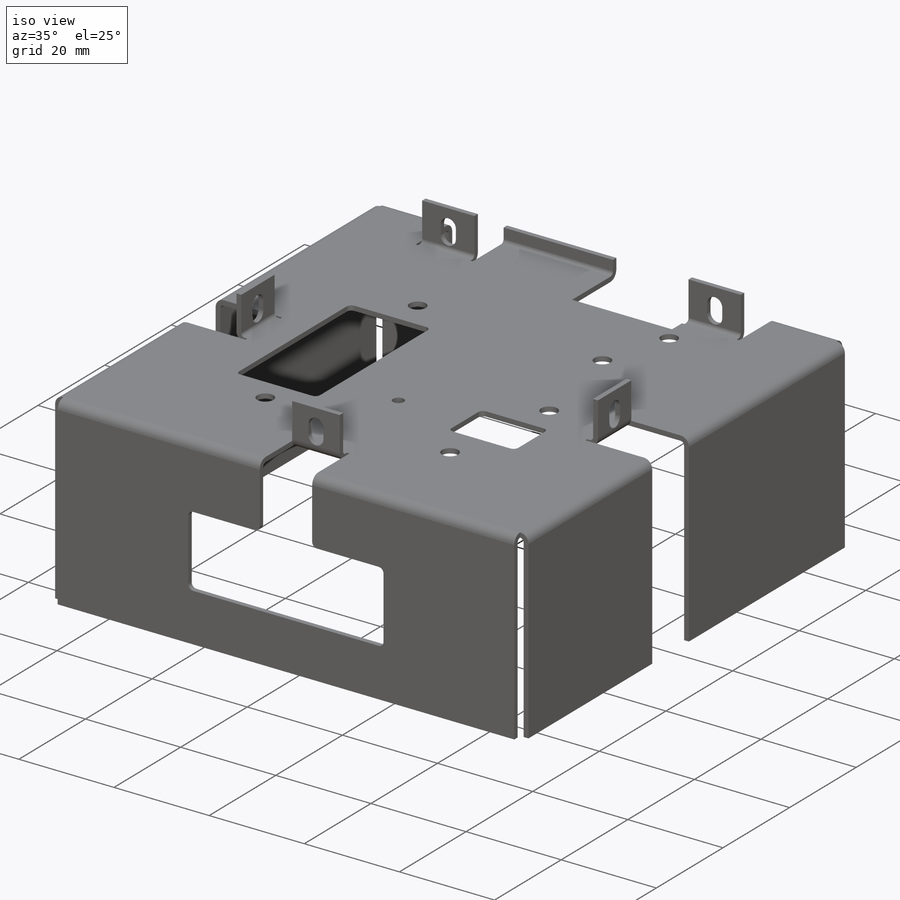
[diagram: iso view]
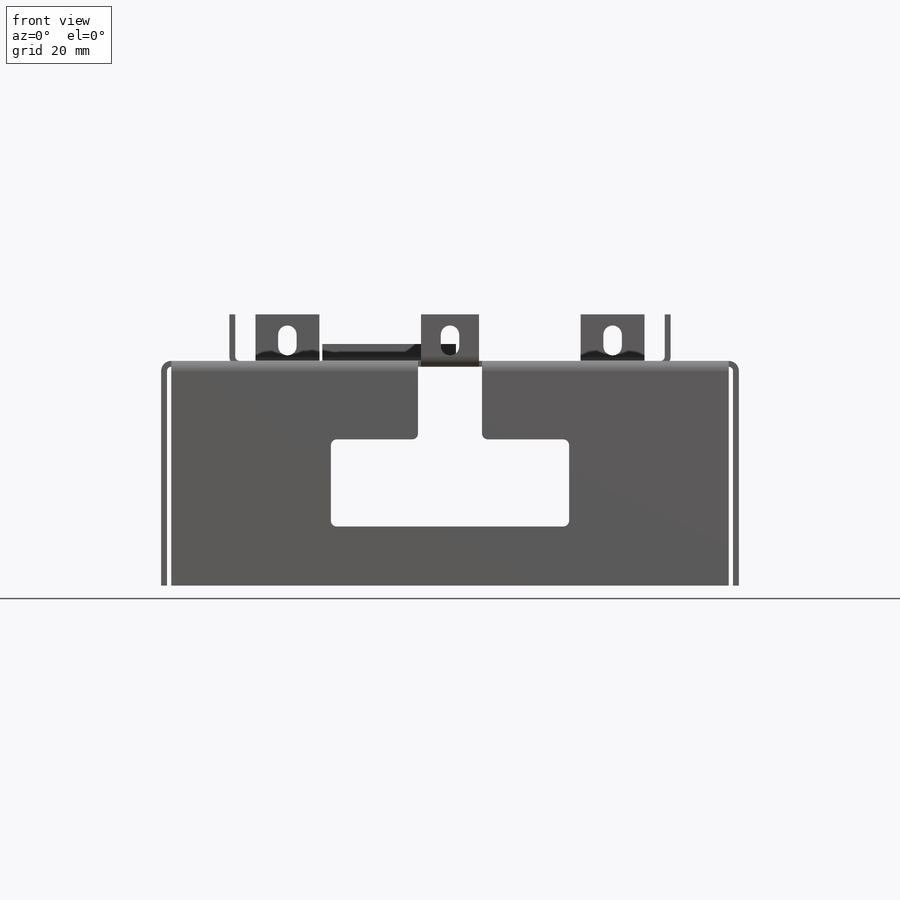
[diagram: front view]
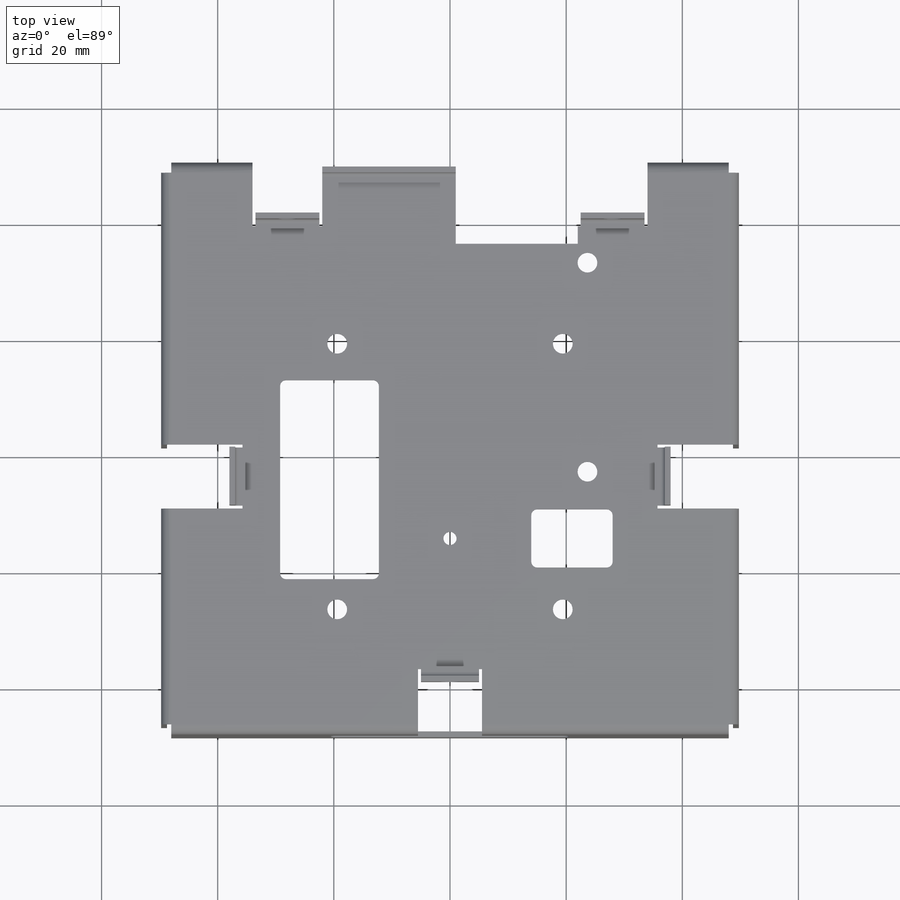
[diagram: top view]
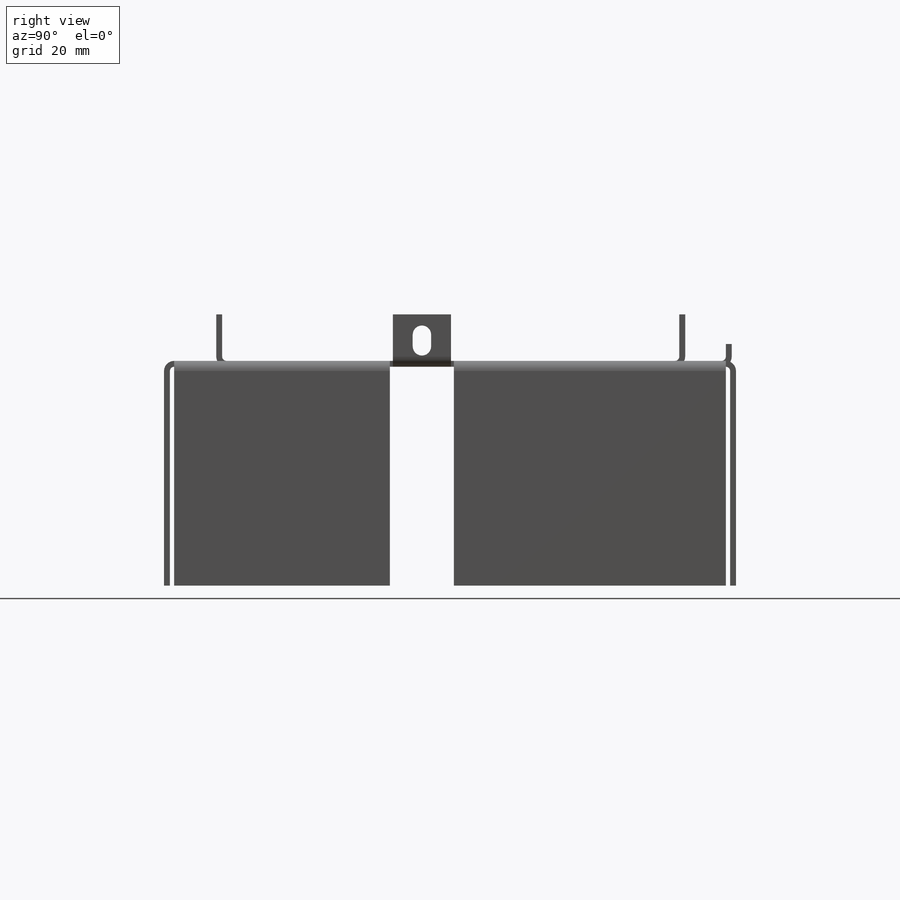
[diagram: right view]
SOLIDWORKS PART (.sldprt)
format: sldprt  version: not decoded by parser v0  size: 1,753,088 bytes
history: native  units: mm
features: sketch x72, sheet_metal_op x39, fillet x25, cut_extrude x9, mirror x5, material x1, plane x1, extrude x1 + 224 further entries (+13 scaffold rows collapsed; 25 parser-record rows omitted)
feature tree (415):
  scaffold x13  (default folders/planes/origin — collapsed)
  material  "6061 Alloy"
  sketch  "Sketch1"  dims[c1.D1=96.75mm c1.D2=96.0mm c2.D1=0.7366mm c2.D2=0.5 c2.D3=0.0mm c2.D6=500.0mm]
  sheet_metal_op  "Base-Flange1"
  sketch  "Sketch8"  dims[c1.D1=20.0mm c1.D2=11.0mm c1.D3=8.0mm c2.D1=14.5mm c3.D1=0.7366mm c3.D4=90.0deg c3.D5=1.0 c3.D8=0.508mm c3.D9=0.508mm c4.D1=0.7366mm c4.D2=500.0mm c4.D3=0.0mm c4.D6=7.0mm c4.D7=9.016mm]
  sketch  "Sketch47"  dims[D1=3.18mm D2=2.0mm D3=3.5mm]
  cut_extrude  "Cut-Extrude4"  [1 undecoded]
  plane  "Plane4"
  mirror  "Mirror4"
  sheet_metal_op  "MirrorBend5"  Edge-Flange8=0
  sketch  "Sketch38"  dims[D1=10.0mm D2=10.0mm D3=8.0mm]
  sheet_metal_op  "EdgeBend8"  Edge-Flange2=0
  sketch  "Sketch40"
  sheet_metal_op  "EdgeBend9"  Edge-Flange9=0
  sketch  "Sketch43"
  sheet_metal_op  "EdgeBend10"  Edge-Flange4=0
  sketch  "Sketch22"  dims[D1=10.0mm D2=8.0mm D3=30.94mm]
  sheet_metal_op  "EdgeBend4"
  sketch  "Sketch24"  dims[D1=3.18mm D2=2.0mm D3=3.5mm]
  cut_extrude  "Cut-Extrude1"  [1 undecoded]
  mirror  "Mirror5"
  sheet_metal_op  "MirrorBend6"  Edge-Flange5=0
  sketch  "Sketch29"
  sheet_metal_op  "EdgeBend5"  Edge-Flange6=0
  sketch  "Sketch32"
  sheet_metal_op  "EdgeBend6"
  mirror  "Mirror6"
  sheet_metal_op  "MirrorBend7"
  sheet_metal_op  "MirrorBend8"
  sketch  "Sketch44"  dims[D1=3.18mm D2=2.0mm D3=3.5mm]
  cut_extrude  "Cut-Extrude2"  Depth=0 Edge-Flange10=0
  sketch  "Sketch50"
  sheet_metal_op  "EdgeBend11"
  mirror  "Mirror7"
  sheet_metal_op  "MirrorBend9"
  sketch  "Sketch59"  dims[D1=49.0mm D2=15.0mm D3=12.25mm]
  cut_extrude  "Cut-Extrude9"  Depth=10mm Edge-Flange11=0
  sketch  "Sketch53"
  sheet_metal_op  "EdgeBend12"
  sketch  "Sketch54"  dims[D1=17.0mm D2=25.0mm D3=27.0mm D4=7.0mm]
  cut_extrude  "Cut-Extrude5"  [1 undecoded]
  sketch  "Sketch55"  dims[D1=14.0mm D2=27.0mm D3=10.0mm D4=20.0mm]
  cut_extrude  "Cut-Extrude6"  [1 undecoded]
  sketch  "Sketch56"  dims[c1.D1=3.4mm c1.D3=~7.307221mm c1.D6=~7.307221mm c1.D8=3.4mm c1.D2=28.58mm c2.D3=28.47mm c2.D4=74.21mm c2.D5=28.58mm c2.D6=36.0mm c2.D7=16.0mm c2.D9=24.33mm c3.D7=15.5mm c3.D4=19.79mm c3.D3=29.46mm]
  cut_extrude  "Cut-Extrude7"  [1 undecoded]
  sketch  "Sketch57"  dims[D1=10.18mm D2=15.0mm D3=15.0mm]
  cut_extrude  "Cut-Extrude8"  [1 undecoded]
  mirror  "Mirror8"
  fillet  "Fillet1"  Radius=1mm
  sketch  "Sketch60"  dims[D1=2.2606mm D2=23.0mm]
  cut_extrude  "Cut-Extrude10"  [1 undecoded]
  sketch  "Sketch61"
  extrude  "Boss-Extrude1"  [1 undecoded]
  sketch  "Bend-Lines1"
  sketch  "Bounding-Box1"
  sheet_metal_op  "Sheet-Metal1"
  "Flat-Pattern1"
  sketch  "Bend-Lines2"
  sketch  "Bounding-Box2"
  parser-record x25  (decoder bookkeeping rows leaked as tree rows — omitted from the tree; the rows remain in map.json)
  fillet  "Sheet-Metal2"  Radius=0.7366mm
  sheet_metal_op  "Flat-Pattern1"
  sketch  "Bend-Lines2"
  sketch  "Bounding-Box2"
  fillet  "Sheet-Metal3"  Radius=0.7366mm
  sheet_metal_op  "Flat-Pattern1"
  sketch  "Bend-Lines2"
  sketch  "Bounding-Box2"
  "Flatten-<EdgeBend8>2"
  "Flatten-<MirrorBend5>3"
  "Flatten-<EdgeBend9>1"
  "Flatten-<EdgeBend1>1"
  fillet  "Sheet-Metal6"  Radius=0.7366mm
  sheet_metal_op  "Flat-Pattern1"
  sketch  "Bend-Lines2"
  sketch  "Bounding-Box2"
  "Flatten-<EdgeBend4>1"
  "Flatten-<EdgeBend8>3"
  "Flatten-<EdgeBend10>2"
  "Flatten-<MirrorBend5>5"
  "Flatten-<EdgeBend9>2"
  "Flatten-<EdgeBend1>1"
  fillet  "Sheet-Metal8"  Radius=0.7366mm
  sheet_metal_op  "Flat-Pattern1"
  sketch  "Bend-Lines2"
  sketch  "Bounding-Box2"
  "Flatten-<EdgeBend4>1"
  "Flatten-<EdgeBend8>4"
  "Flatten-<EdgeBend10>3"
  "Flatten-<MirrorBend5>6"
  "Flatten-<EdgeBend9>3"
  "Flatten-<EdgeBend1>1"
  fillet  "Sheet-Metal10"  Radius=0.7366mm
  sheet_metal_op  "Flat-Pattern1"
  sketch  "Bend-Lines2"
  sketch  "Bounding-Box2"
  "Flatten-<EdgeBend4>1"
  "Flatten-<EdgeBend5>1"
  "Flatten-<EdgeBend8>6"
  "Flatten-<EdgeBend10>5"
  "Flatten-<MirrorBend5>7"
  "Flatten-<MirrorBend6>2"
  "Flatten-<EdgeBend9>5"
  "Flatten-<EdgeBend1>1"
  fillet  "Sheet-Metal11"  Radius=0.7366mm
  sheet_metal_op  "Flat-Pattern1"
  sketch  "Bend-Lines2"
  sketch  "Bounding-Box2"
  "Flatten-<EdgeBend4>1"
  "Flatten-<EdgeBend5>1"
  "Flatten-<EdgeBend6>1"
  "Flatten-<EdgeBend8>7"
  "Flatten-<EdgeBend10>6"
  "Flatten-<MirrorBend5>8"
  "Flatten-<MirrorBend6>3"
  "Flatten-<EdgeBend9>6"
  "Flatten-<EdgeBend1>1"
  fillet  "Sheet-Metal14"  Radius=0.7366mm
  sheet_metal_op  "Flat-Pattern1"
  sketch  "Bend-Lines2"
  sketch  "Bounding-Box2"
  "Flatten-<EdgeBend8>1"
  "Flatten-<MirrorBend5>2"
  "Flatten-<EdgeBend1>1"
  fillet  "Sheet-Metal15"  Radius=0.7366mm
  sheet_metal_op  "Flat-Pattern1"
  sketch  "Bend-Lines2"
  sketch  "Bounding-Box2"
  "Flatten-<EdgeBend8>2"
  "Flatten-<EdgeBend10>1"
  "Flatten-<MirrorBend5>4"
  "Flatten-<EdgeBend9>1"
  "Flatten-<EdgeBend1>1"
  fillet  "Sheet-Metal16"  Radius=0.7366mm
  sheet_metal_op  "Flat-Pattern1"
  sketch  "Bend-Lines2"
  sketch  "Bounding-Box2"
  "Flatten-<EdgeBend4>1"
  "Flatten-<EdgeBend5>1"
  "Flatten-<EdgeBend6>1"
  "Flatten-<EdgeBend8>8"
  "Flatten-<EdgeBend10>7"
  "Flatten-<MirrorBend5>9"
  "Flatten-<MirrorBend6>4"
  "Flatten-<MirrorBend7>2"
  "Flatten-<MirrorBend8>2"
  "Flatten-<EdgeBend9>7"
  "Flatten-<EdgeBend1>1"
  fillet  "Sheet-Metal18"  Radius=0.7366mm
  sheet_metal_op  "Flat-Pattern1"
  sketch  "Bend-Lines2"
  sketch  "Bounding-Box2"
  "Flatten-<MirrorBend5>1"
  "Flatten-<EdgeBend1>1"
  fillet  "Sheet-Metal19"  Radius=0.7366mm
  sheet_metal_op  "Flat-Pattern1"
  sketch  "Bend-Lines2"
  sketch  "Bounding-Box2"
  "Flatten-<EdgeBend4>1"
  "Flatten-<EdgeBend8>4"
  "Flatten-<EdgeBend10>3"
  "Flatten-<MirrorBend5>6"
  "Flatten-<MirrorBend6>1"
  "Flatten-<EdgeBend9>3"
  "Flatten-<EdgeBend1>1"
  fillet  "Sheet-Metal20"  Radius=0.7366mm
  sheet_metal_op  "Flat-Pattern1"
  sketch  "Bend-Lines2"
  sketch  "Bounding-Box2"
  "Flatten-<EdgeBend4>1"
  "Flatten-<EdgeBend5>1"
  "Flatten-<EdgeBend6>1"
  "Flatten-<EdgeBend8>7"
  "Flatten-<EdgeBend10>6"
  "Flatten-<MirrorBend5>8"
  "Flatten-<MirrorBend6>3"
  "Flatten-<MirrorBend7>1"
  "Flatten-<MirrorBend8>1"
  "Flatten-<EdgeBend9>6"
  "Flatten-<EdgeBend1>1"
  fillet  "Sheet-Metal21"  Radius=0.7366mm
  sheet_metal_op  "Flat-Pattern1"
  sketch  "Bend-Lines2"
  sketch  "Bounding-Box2"
  "Flatten-<EdgeBend1>1"
  fillet  "Sheet-Metal22"  Radius=0.7366mm
  sheet_metal_op  "Flat-Pattern1"
  sketch  "Bend-Lines2"
  sketch  "Bounding-Box2"
  "Flatten-<EdgeBend4>1"
  "Flatten-<EdgeBend5>1"
  "Flatten-<EdgeBend6>1"
  "Flatten-<EdgeBend8>8"
  "Flatten-<EdgeBend10>7"
  "Flatten-<MirrorBend5>9"
  "Flatten-<MirrorBend6>4"
  "Flatten-<EdgeBend11>1"
  "Flatten-<MirrorBend7>2"
  "Flatten-<MirrorBend8>2"
  "Flatten-<EdgeBend9>7"
  "Flatten-<EdgeBend1>1"
  fillet  "Sheet-Metal23"  Radius=0.7366mm
  sheet_metal_op  "Flat-Pattern1"
  sketch  "Bend-Lines2"
  sketch  "Bounding-Box2"
  "Flatten-<EdgeBend4>1"
  "Flatten-<EdgeBend5>1"
  "Flatten-<EdgeBend6>1"
  "Flatten-<EdgeBend8>8"
  "Flatten-<EdgeBend10>7"
  "Flatten-<MirrorBend5>9"
  "Flatten-<MirrorBend6>4"
  "Flatten-<MirrorBend7>2"
  "Flatten-<MirrorBend8>2"
  "Flatten-<EdgeBend11>1"
  "Flatten-<MirrorBend9>1"
  "Flatten-<EdgeBend9>7"
  "Flatten-<EdgeBend1>1"
  fillet  "Sheet-Metal24"  Radius=0.7366mm
  sheet_metal_op  "Flat-Pattern1"
  sketch  "Bend-Lines2"
  sketch  "Bounding-Box2"
  "Flatten-<EdgeBend4>1"
  "Flatten-<EdgeBend5>1"
  "Flatten-<EdgeBend6>1"
  "Flatten-<EdgeBend8>8"
  "Flatten-<EdgeBend10>7"
  "Flatten-<MirrorBend5>9"
  "Flatten-<MirrorBend6>4"
  "Flatten-<EdgeBend11>1"
  "Flatten-<EdgeBend12>1"
  "Flatten-<MirrorBend9>1"
  "Flatten-<MirrorBend8>2"
  "Flatten-<MirrorBend7>2"
  "Flatten-<EdgeBend9>7"
  "Flatten-<EdgeBend1>1"
  fillet  "Sheet-Metal25"  Radius=0.7366mm
  sheet_metal_op  "Flat-Pattern1"
  sketch  "Bend-Lines2"
  sketch  "Bounding-Box2"
  "Flatten-<EdgeBend4>1"
  "Flatten-<EdgeBend5>1"
  "Flatten-<EdgeBend6>1"
  "Flatten-<EdgeBend8>8"
  "Flatten-<EdgeBend10>7"
  "Flatten-<MirrorBend5>9"
  "Flatten-<MirrorBend6>4"
  "Flatten-<EdgeBend11>1"
  "Flatten-<EdgeBend12>1"
  "Flatten-<MirrorBend9>1"
  "Flatten-<MirrorBend8>2"
  "Flatten-<MirrorBend7>2"
  "Flatten-<EdgeBend9>7"
  "Flatten-<EdgeBend1>1"
  fillet  "Sheet-Metal27"  Radius=0.7366mm
  sheet_metal_op  "Flat-Pattern1"
  sketch  "Bend-Lines2"
  sketch  "Bounding-Box2"
  "Flatten-<EdgeBend4>1"
  "Flatten-<EdgeBend5>1"
  "Flatten-<EdgeBend6>1"
  "Flatten-<EdgeBend8>8"
  "Flatten-<EdgeBend10>7"
  "Flatten-<MirrorBend5>9"
  "Flatten-<MirrorBend6>4"
  "Flatten-<EdgeBend11>1"
  "Flatten-<EdgeBend12>1"
  "Flatten-<MirrorBend9>1"
  "Flatten-<MirrorBend8>2"
  "Flatten-<MirrorBend7>2"
  "Flatten-<EdgeBend9>7"
  "Flatten-<EdgeBend1>1"
  fillet  "Sheet-Metal28"  Radius=0.7366mm
  sheet_metal_op  "Flat-Pattern1"
  sketch  "Bend-Lines2"
  sketch  "Bounding-Box2"
  "Flatten-<EdgeBend4>1"
  "Flatten-<EdgeBend5>1"
  "Flatten-<EdgeBend6>1"
  "Flatten-<EdgeBend8>8"
  "Flatten-<EdgeBend10>7"
  "Flatten-<MirrorBend5>9"
  "Flatten-<MirrorBend6>4"
  "Flatten-<EdgeBend11>1"
  "Flatten-<EdgeBend12>1"
  "Flatten-<MirrorBend9>1"
  "Flatten-<MirrorBend8>2"
  "Flatten-<MirrorBend7>2"
  "Flatten-<EdgeBend9>7"
  "Flatten-<EdgeBend1>1"
  fillet  "Sheet-Metal30"  Radius=0.7366mm
  sheet_metal_op  "Flat-Pattern1"
  sketch  "Bend-Lines2"
  sketch  "Bounding-Box2"
  "Flatten-<EdgeBend4>1"
  "Flatten-<EdgeBend5>1"
  "Flatten-<EdgeBend6>1"
  "Flatten-<EdgeBend8>8"
  "Flatten-<EdgeBend10>7"
  "Flatten-<MirrorBend5>9"
  "Flatten-<MirrorBend6>4"
  "Flatten-<EdgeBend11>1"
  "Flatten-<EdgeBend12>1"
  "Flatten-<MirrorBend9>1"
  "Flatten-<MirrorBend8>2"
  "Flatten-<MirrorBend7>2"
  "Flatten-<EdgeBend9>7"
  "Flatten-<EdgeBend1>1"
  fillet  "Sheet-Metal31"  Radius=0.7366mm
  sheet_metal_op  "Flat-Pattern1"
  sketch  "Bend-Lines2"
  sketch  "Bounding-Box2"
  "Flatten-<EdgeBend4>1"
  "Flatten-<EdgeBend5>1"
  "Flatten-<EdgeBend6>1"
  "Flatten-<EdgeBend8>8"
  "Flatten-<EdgeBend10>7"
  "Flatten-<MirrorBend5>9"
  "Flatten-<MirrorBend6>4"
  "Flatten-<EdgeBend11>1"
  "Flatten-<EdgeBend12>1"
  "Flatten-<MirrorBend9>1"
  "Flatten-<MirrorBend8>2"
  "Flatten-<MirrorBend7>2"
  "Flatten-<EdgeBend9>7"
  "Flatten-<EdgeBend1>1"
  fillet  "Sheet-Metal32"  Radius=0.7366mm
  sheet_metal_op  "Flat-Pattern1"
  sketch  "Bend-Lines2"
  sketch  "Bounding-Box2"
  "Flatten-<EdgeBend4>1"
  "Flatten-<EdgeBend5>1"
  "Flatten-<EdgeBend6>1"
  "Flatten-<EdgeBend8>8"
  "Flatten-<EdgeBend10>7"
  "Flatten-<MirrorBend5>9"
  "Flatten-<MirrorBend6>4"
  "Flatten-<MirrorBend7>2"
  "Flatten-<MirrorBend8>2"
  "Flatten-<EdgeBend11>1"
  "Flatten-<MirrorBend9>1"
  "Flatten-<EdgeBend9>7"
  "Flatten-<EdgeBend1>1"
  fillet  "Sheet-Metal33"  Radius=0.7366mm
  sheet_metal_op  "Flat-Pattern1"
  sketch  "Bend-Lines2"
  sketch  "Bounding-Box2"
  "Flatten-<EdgeBend4>1"
  "Flatten-<EdgeBend5>1"
  "Flatten-<EdgeBend6>1"
  "Flatten-<EdgeBend8>8"
  "Flatten-<EdgeBend10>7"
  "Flatten-<MirrorBend5>9"
  "Flatten-<MirrorBend6>4"
  "Flatten-<EdgeBend11>1"
  "Flatten-<EdgeBend12>1"
  "Flatten-<MirrorBend9>1"
  "Flatten-<MirrorBend8>2"
  "Flatten-<MirrorBend7>2"
  "Flatten-<EdgeBend9>7"
  "Flatten-<EdgeBend1>1"
  fillet  "Sheet-Metal34"  Radius=0.7366mm
  sheet_metal_op  "Flat-Pattern1"
  sketch  "Bend-Lines2"
  sketch  "Bounding-Box2"
  "Flatten-<EdgeBend4>1"
  "Flatten-<EdgeBend5>1"
  "Flatten-<EdgeBend6>1"
  "Flatten-<EdgeBend8>8"
  "Flatten-<EdgeBend10>7"
  "Flatten-<MirrorBend5>9"
  "Flatten-<MirrorBend6>4"
  "Flatten-<EdgeBend11>1"
  "Flatten-<EdgeBend12>1"
  "Flatten-<MirrorBend9>1"
  "Flatten-<MirrorBend8>2"
  "Flatten-<MirrorBend7>2"
  "Flatten-<EdgeBend9>7"
  "Flatten-<EdgeBend1>1"
decode coverage: 46 of 151 modeling features carry decoded parameters; 224 rows unclassified (native names shown)
note: ~ marks probable driven/reference dimensions
note: 8 parameter values undecoded
summary: no parameter record found for 8 features
note: suppression state not decoded; provenance and decode notes live in map.json
